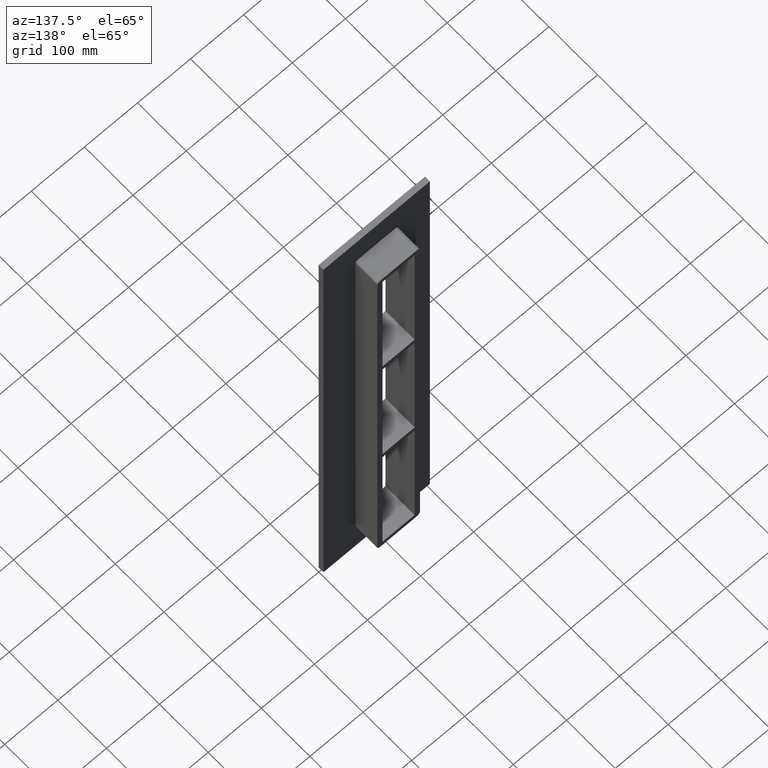
[diagram: clean part render]
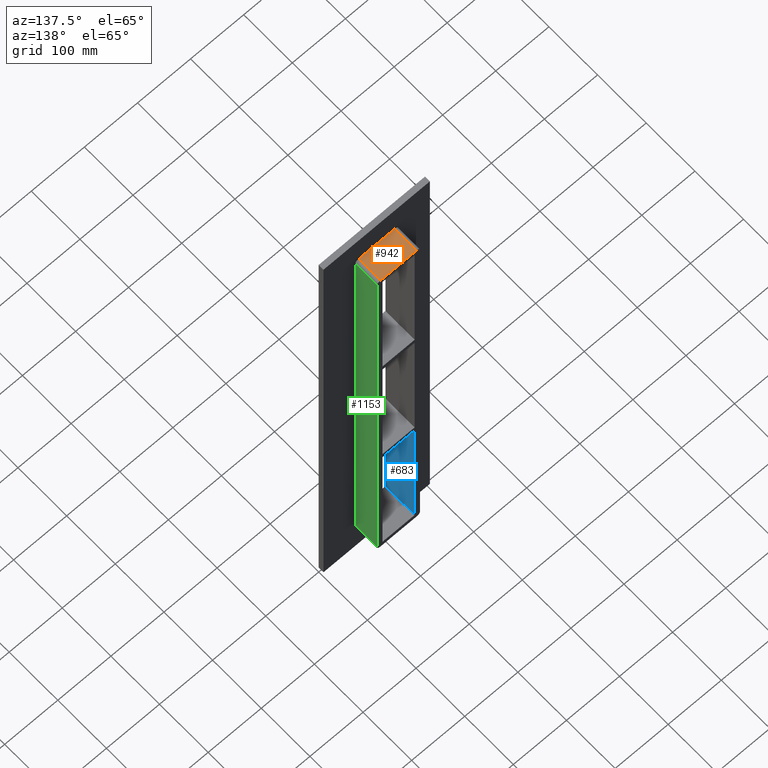
[diagram: same view with three faces highlighted in distinct colors, each labeled with its STEP entity id]
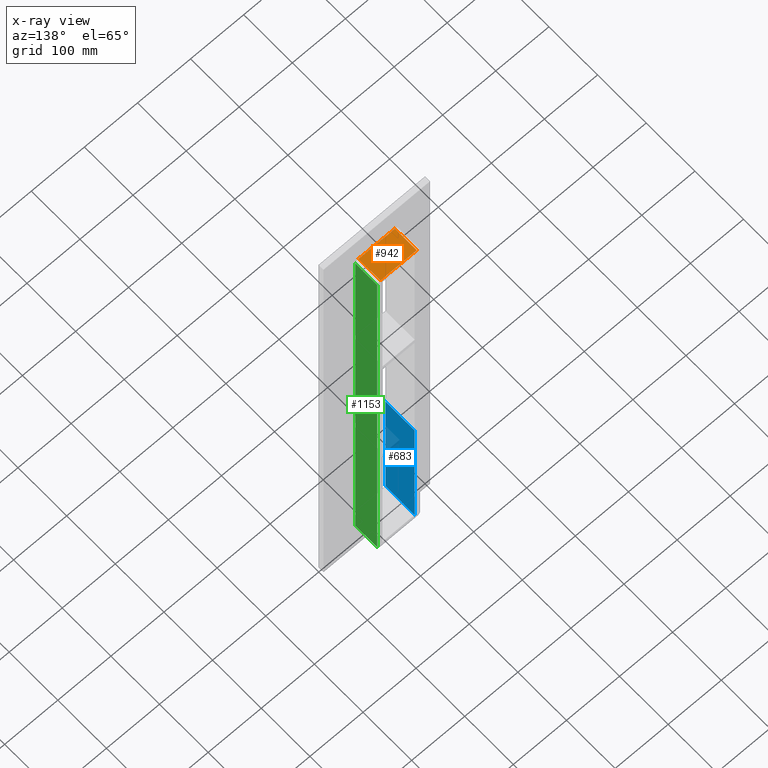
[diagram: x-ray of the same camera — body ghosted, the three highlighted faces saturated]
A machine part, auxiliary view with three faces highlighted in distinct colors.
The next image is the same camera in x-ray (body ghosted, the three faces saturated) — at least one of them is partly hidden behind the body in this view.
Their STEP definitions:

[orange] entity #942 — the highlighted planar face has unit normal (0, 0, 1).
#404=CARTESIAN_POINT('',(34.250000000000007,10.0,437.0));
#405=VERTEX_POINT('',#404);
#415=CARTESIAN_POINT('',(-34.250000000000043,10.0,437.0));
#416=VERTEX_POINT('',#415);
#417=CARTESIAN_POINT('',(-34.250000000000043,10.0,437.0));
#418=DIRECTION('',(1.0,0.0,0.0));
#419=VECTOR('',#418,68.500000000000057);
#420=LINE('',#417,#419);
#421=EDGE_CURVE('',#416,#405,#420,.T.);
#851=CARTESIAN_POINT('',(-34.250000000000043,55.0,437.0));
#852=VERTEX_POINT('',#851);
#853=CARTESIAN_POINT('',(-34.250000000000043,10.0,437.0));
#854=DIRECTION('',(0.0,1.0,0.0));
#855=VECTOR('',#854,45.0);
#856=LINE('',#853,#855);
#857=EDGE_CURVE('',#416,#852,#856,.T.);
#919=CARTESIAN_POINT('',(-34.250000000000043,0.0,437.0));
#920=DIRECTION('',(0.0,0.0,1.0));
#921=DIRECTION('',(1.0,0.0,0.0));
#922=AXIS2_PLACEMENT_3D('',#919,#920,#921);
#923=PLANE('',#922);
#924=ORIENTED_EDGE('',*,*,#421,.T.);
#925=CARTESIAN_POINT('',(34.250000000000007,55.0,437.0));
#926=VERTEX_POINT('',#925);
#927=CARTESIAN_POINT('',(34.250000000000007,10.0,437.0));
#928=DIRECTION('',(0.0,1.0,0.0));
#929=VECTOR('',#928,45.0);
#930=LINE('',#927,#929);
#931=EDGE_CURVE('',#405,#926,#930,.T.);
#932=ORIENTED_EDGE('',*,*,#931,.T.);
#933=CARTESIAN_POINT('',(-34.250000000000043,55.0,437.0));
#934=DIRECTION('',(1.0,0.0,0.0));
#935=VECTOR('',#934,68.500000000000057);
#936=LINE('',#933,#935);
#937=EDGE_CURVE('',#852,#926,#936,.T.);
#938=ORIENTED_EDGE('',*,*,#937,.F.);
#939=ORIENTED_EDGE('',*,*,#857,.F.);
#940=EDGE_LOOP('',(#924,#932,#938,#939));
#941=FACE_OUTER_BOUND('',#940,.T.);
#942=ADVANCED_FACE('',(#941),#923,.T.);

[blue] entity #683 — the highlighted planar face has unit normal (-1, 0, 0).
#248=CARTESIAN_POINT('',(-30.250000000002643,-5.0,-149.00000000000091));
#249=VERTEX_POINT('',#248);
#256=CARTESIAN_POINT('',(-30.250000000002643,55.0,-149.00000000000091));
#257=VERTEX_POINT('',#256);
#258=CARTESIAN_POINT('',(-30.250000000000004,55.0,-149.00000000000091));
#259=DIRECTION('',(0.0,-1.0,0.0));
#260=VECTOR('',#259,60.0);
#261=LINE('',#258,#260);
#262=EDGE_CURVE('',#257,#249,#261,.T.);
#653=CARTESIAN_POINT('',(-30.250000000000004,0.0,-427.0));
#654=DIRECTION('',(-1.0,0.0,0.0));
#655=DIRECTION('',(0.0,0.0,1.0));
#656=AXIS2_PLACEMENT_3D('',#653,#654,#655);
#657=PLANE('',#656);
#658=ORIENTED_EDGE('',*,*,#262,.T.);
#659=CARTESIAN_POINT('',(-30.250000000000004,-5.0,-427.0));
#660=VERTEX_POINT('',#659);
#661=CARTESIAN_POINT('',(-30.250000000000004,-5.0,-427.0));
#662=DIRECTION('',(0.0,0.0,1.0));
#663=VECTOR('',#662,277.99999999999909);
#664=LINE('',#661,#663);
#665=EDGE_CURVE('',#660,#249,#664,.T.);
#666=ORIENTED_EDGE('',*,*,#665,.F.);
#667=CARTESIAN_POINT('',(-30.250000000000004,55.0,-427.0));
#668=VERTEX_POINT('',#667);
#669=CARTESIAN_POINT('',(-30.250000000000004,-5.0,-427.0));
#670=DIRECTION('',(0.0,1.0,0.0));
#671=VECTOR('',#670,60.0);
#672=LINE('',#669,#671);
#673=EDGE_CURVE('',#660,#668,#672,.T.);
#674=ORIENTED_EDGE('',*,*,#673,.T.);
#675=CARTESIAN_POINT('',(-30.250000000000004,55.0,-149.00000000000091));
#676=DIRECTION('',(0.0,0.0,-1.0));
#677=VECTOR('',#676,277.99999999999909);
#678=LINE('',#675,#677);
#679=EDGE_CURVE('',#257,#668,#678,.T.);
#680=ORIENTED_EDGE('',*,*,#679,.F.);
#681=EDGE_LOOP('',(#658,#666,#674,#680));
#682=FACE_OUTER_BOUND('',#681,.T.);
#683=ADVANCED_FACE('',(#682),#657,.F.);

[green] entity #1153 — the highlighted planar face has unit normal (1, 0, 0).
#406=CARTESIAN_POINT('',(40.249999999999986,10.0,431.00000000000011));
#407=VERTEX_POINT('',#406);
#457=CARTESIAN_POINT('',(40.249999999999986,10.0,-431.00000000000011));
#458=VERTEX_POINT('',#457);
#466=CARTESIAN_POINT('',(40.249999999999986,10.0,431.00000000000011));
#467=DIRECTION('',(0.0,0.0,-1.0));
#468=VECTOR('',#467,862.0);
#469=LINE('',#466,#468);
#470=EDGE_CURVE('',#407,#458,#469,.T.);
#1069=CARTESIAN_POINT('',(40.249999999999986,55.0,431.00000000000011));
#1070=VERTEX_POINT('',#1069);
#1071=CARTESIAN_POINT('',(40.249999999999986,55.0,431.00000000000011));
#1072=DIRECTION('',(0.0,-1.0,0.0));
#1073=VECTOR('',#1072,45.0);
#1074=LINE('',#1071,#1073);
#1075=EDGE_CURVE('',#1070,#407,#1074,.T.);
#1119=CARTESIAN_POINT('',(40.249999999999986,55.0,-431.00000000000011));
#1120=VERTEX_POINT('',#1119);
#1128=CARTESIAN_POINT('',(40.249999999999986,10.0,-431.00000000000011));
#1129=DIRECTION('',(0.0,1.0,0.0));
#1130=VECTOR('',#1129,45.0);
#1131=LINE('',#1128,#1130);
#1132=EDGE_CURVE('',#458,#1120,#1131,.T.);
#1137=CARTESIAN_POINT('',(40.249999999999986,0.0,431.00000000000011));
#1138=DIRECTION('',(1.0,0.0,0.0));
#1139=DIRECTION('',(0.0,0.0,-1.0));
#1140=AXIS2_PLACEMENT_3D('',#1137,#1138,#1139);
#1141=PLANE('',#1140);
#1142=ORIENTED_EDGE('',*,*,#470,.T.);
#1143=ORIENTED_EDGE('',*,*,#1132,.T.);
#1144=CARTESIAN_POINT('',(40.249999999999986,55.0,431.00000000000011));
#1145=DIRECTION('',(0.0,0.0,-1.0));
#1146=VECTOR('',#1145,862.00000000000023);
#1147=LINE('',#1144,#1146);
#1148=EDGE_CURVE('',#1070,#1120,#1147,.T.);
#1149=ORIENTED_EDGE('',*,*,#1148,.F.);
#1150=ORIENTED_EDGE('',*,*,#1075,.T.);
#1151=EDGE_LOOP('',(#1142,#1143,#1149,#1150));
#1152=FACE_OUTER_BOUND('',#1151,.T.);
#1153=ADVANCED_FACE('',(#1152),#1141,.T.);